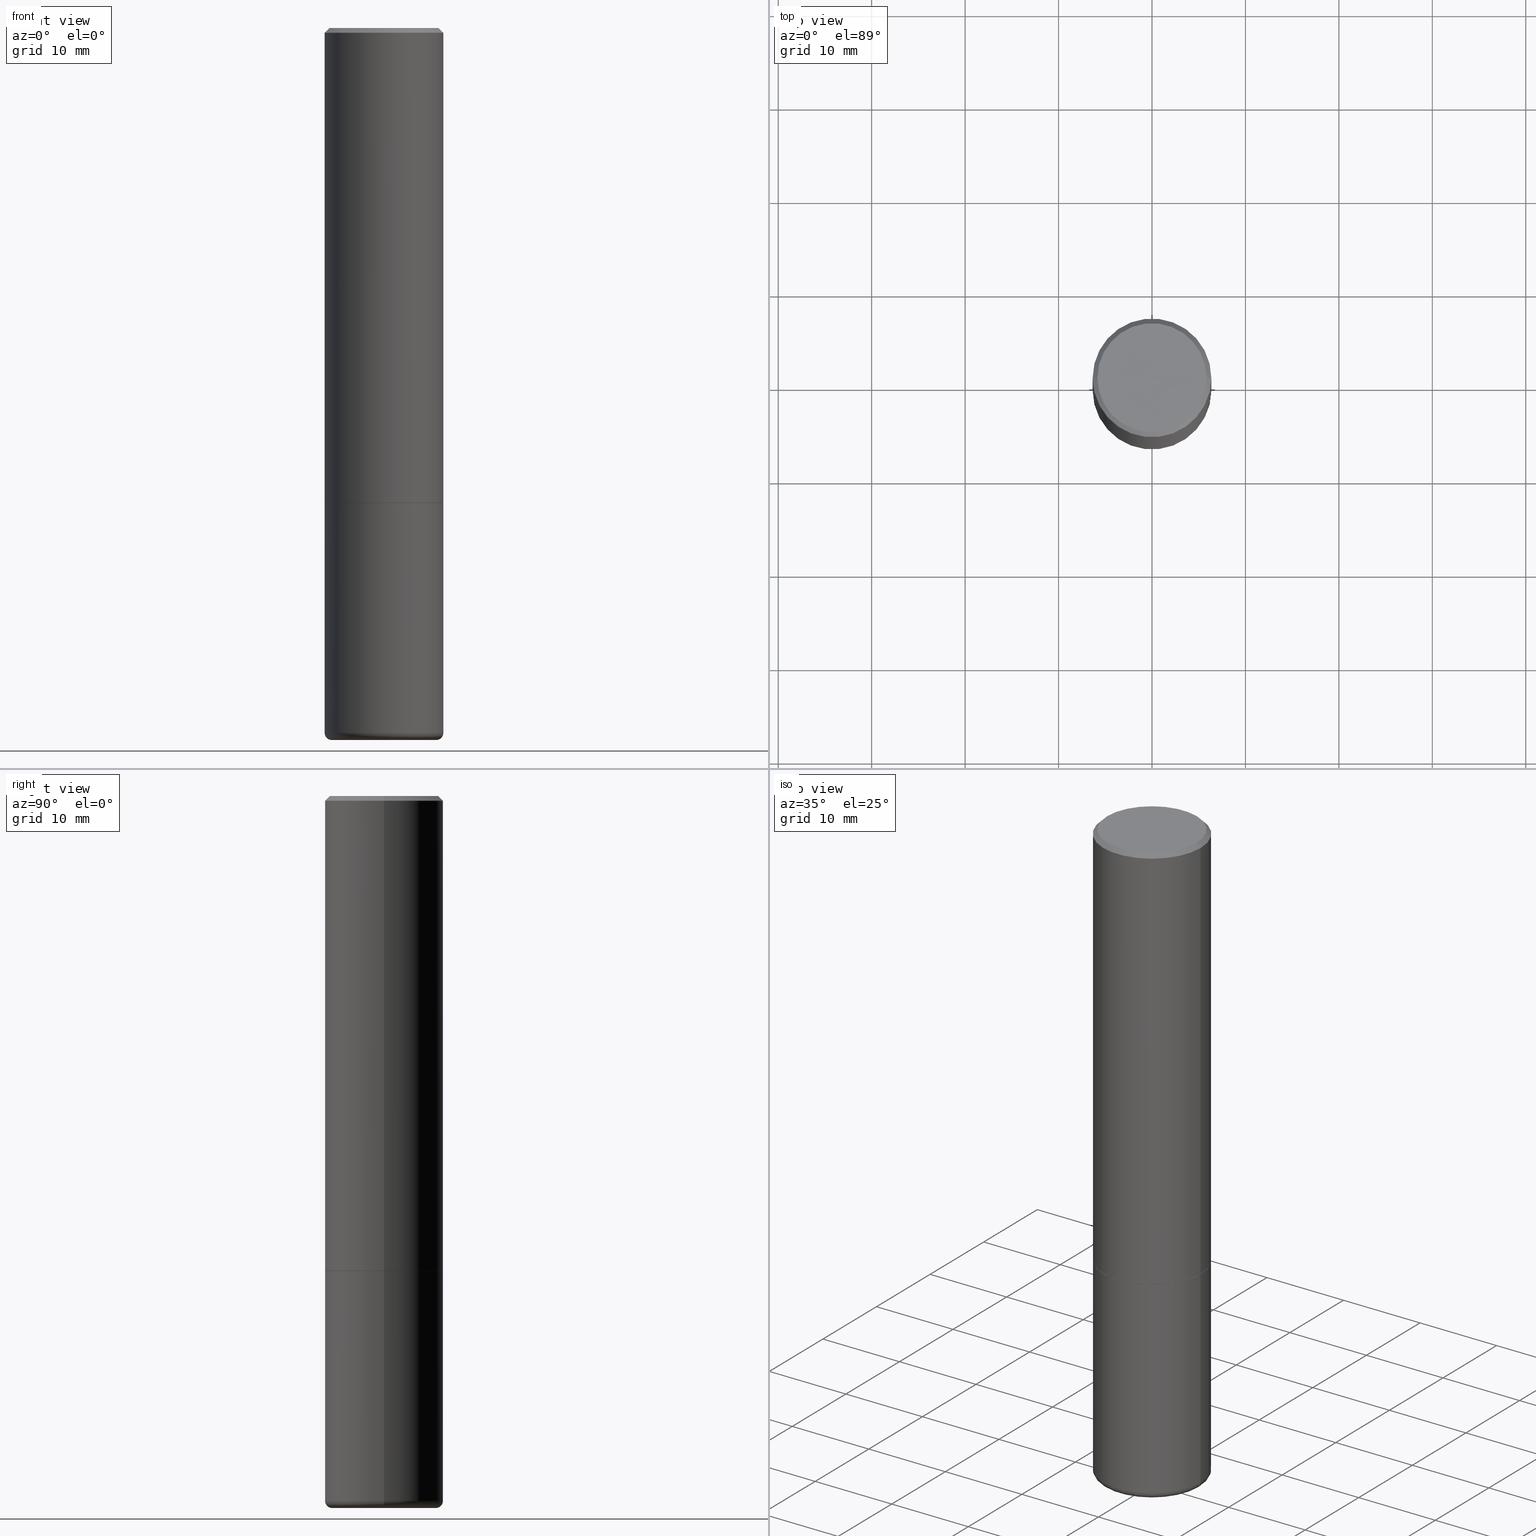
[diagram: canonical four-view strip — front | top / right | iso, engineering-drawing reading convention]
A machine part, canonical four-view strip (front | top / right | iso — engineering-drawing reading convention). The complete STEP part file that produces these views, byte-faithful:
ISO-10303-21;
HEADER;
FILE_DESCRIPTION (( 'STEP AP203' ),
    '1' );
FILE_NAME ('37343.STEP',
    '2024-03-02T00:01:26',
    ( '' ),
    ( '' ),
    'SwSTEP 2.0',
    'SolidWorks 2023',
    '' );
FILE_SCHEMA (( 'CONFIG_CONTROL_DESIGN' ));
ENDSEC;

DATA;
#1 = ORIENTED_EDGE ( 'NONE', *, *, #10, .T. ) ;
#2 = APPROVAL ( #135, 'UNSPECIFIED' ) ;
#3 = VERTEX_POINT ( 'NONE', #41 ) ;
#4 = ORIENTED_EDGE ( 'NONE', *, *, #157, .F. ) ;
#5 = EDGE_CURVE ( 'NONE', #39, #134, #55, .T. ) ;
#6 = AXIS2_PLACEMENT_3D ( 'NONE', #415, #68, #102 ) ;
#7 = CARTESIAN_POINT ( 'NONE',  ( 4.890937612370273754E-29, -6.982962677686291954E-15, -2.000000000000000444 ) ) ;
#8 = LINE ( 'NONE', #270, #181 ) ;
#9 = ADVANCED_FACE ( 'NONE', ( #339 ), #49, .F. ) ;
#10 = EDGE_CURVE ( 'NONE', #330, #260, #148, .T. ) ;
#11 = DIRECTION ( 'NONE',  ( -2.445468806185136597E-29, 3.491481338843145583E-15, 1.000000000000000000 ) ) ;
#12 = CC_DESIGN_DATE_AND_TIME_ASSIGNMENT ( #252, #79, ( #76 ) ) ;
#13 = PLANE ( 'NONE',  #26 ) ;
#14 = AXIS2_PLACEMENT_3D ( 'NONE', #366, #11, #243 ) ;
#15 = DIRECTION ( 'NONE',  ( -2.445468806185136597E-29, 3.491481338843145583E-15, 1.000000000000000000 ) ) ;
#16 = DIRECTION ( 'NONE',  ( 1.000000000000000000, -6.982962677686268288E-15, 0.000000000000000000 ) ) ;
#17 = DIRECTION ( 'NONE',  ( 1.000000000000000000, -6.982962677686270655E-15, 0.000000000000000000 ) ) ;
#18 = CARTESIAN_POINT ( 'NONE',  ( -0.2299999999999995381, 1.640996229256271139E-15, 4.268512490100296524E-16 ) ) ;
#19 = DIRECTION ( 'NONE',  ( -2.445468806185136877E-29, 3.491481338843145188E-15, 1.000000000000000000 ) ) ;
#20 = AXIS2_PLACEMENT_3D ( 'NONE', #305, #15, #121 ) ;
#21 = LINE ( 'NONE', #407, #87 ) ;
#22 = FACE_OUTER_BOUND ( 'NONE', #167, .T. ) ;
#23 = EDGE_LOOP ( 'NONE', ( #417, #28 ) ) ;
#24 = EDGE_CURVE ( 'NONE', #300, #229, #238, .T. ) ;
#25 = EDGE_CURVE ( 'NONE', #39, #113, #370, .T. ) ;
#26 = AXIS2_PLACEMENT_3D ( 'NONE', #335, #133, #264 ) ;
#27 = APPROVAL_STATUS ( 'not_yet_approved' ) ;
#28 = ORIENTED_EDGE ( 'NONE', *, *, #205, .F. ) ;
#29 = CALENDAR_DATE ( 2024, 1, 3 ) ;
#30 = EDGE_CURVE ( 'NONE', #165, #3, #178, .T. ) ;
#31 = ORIENTED_EDGE ( 'NONE', *, *, #5, .F. ) ;
#32 = APPROVAL_ROLE ( '' ) ;
#33 = CIRCLE ( 'NONE', #168, 0.2200000000000000011 ) ;
#34 = AXIS2_PLACEMENT_3D ( 'NONE', #151, #279, #247 ) ;
#35 = ORIENTED_EDGE ( 'NONE', *, *, #91, .F. ) ;
#36 = ORIENTED_EDGE ( 'NONE', *, *, #144, .T. ) ;
#37 = DIRECTION ( 'NONE',  ( -2.445468806185136597E-29, 3.491481338843145583E-15, 1.000000000000000000 ) ) ;
#38 = CYLINDRICAL_SURFACE ( 'NONE', #6, 0.2500000000000000000 ) ;
#39 = VERTEX_POINT ( 'NONE', #146 ) ;
#40 = EDGE_CURVE ( 'NONE', #359, #390, #267, .T. ) ;
#41 = CARTESIAN_POINT ( 'NONE',  ( 0.2499999999999998612, -1.211544024578571124E-14, -2.970000000000000195 ) ) ;
#42 = CALENDAR_DATE ( 2024, 1, 3 ) ;
#43 = DIRECTION ( 'NONE',  ( 2.438088387897960049E-29, -3.491481338843145188E-15, -1.000000000000000000 ) ) ;
#44 = EDGE_CURVE ( 'NONE', #390, #359, #142, .T. ) ;
#45 = DIRECTION ( 'NONE',  ( -2.445468806185136597E-29, 3.491481338843145583E-15, 1.000000000000000000 ) ) ;
#46 = CARTESIAN_POINT ( 'NONE',  ( 4.890937612370273754E-29, -6.982962677686291954E-15, -2.000000000000000444 ) ) ;
#47 = ADVANCED_FACE ( 'NONE', ( #149 ), #334, .T. ) ;
#48 = AXIS2_PLACEMENT_3D ( 'NONE', #404, #176, #313 ) ;
#49 = PLANE ( 'NONE',  #163 ) ;
#50 = CARTESIAN_POINT ( 'NONE',  ( 0.2489999999999999991, -8.721720384430172617E-15, -2.000000000000000444 ) ) ;
#51 =( CONVERSION_BASED_UNIT ( 'INCH', #409 ) LENGTH_UNIT ( ) NAMED_UNIT ( #103 ) );
#52 = DIRECTION ( 'NONE',  ( -0.7071067811866078578, 7.493145998870571886E-15, 0.7071067811864871766 ) ) ;
#53 = PRODUCT ( '37343', '37343', '', ( #127 ) ) ;
#54 = DIRECTION ( 'NONE',  ( 1.000000000000000000, -6.982962677686262766E-15, 4.883557194083111780E-29 ) ) ;
#55 = CIRCLE ( 'NONE', #213, 0.2500000000000002220 ) ;
#56 = CIRCLE ( 'NONE', #131, 0.2499999999999999722 ) ;
#57 = AXIS2_PLACEMENT_3D ( 'NONE', #89, #179, #217 ) ;
#58 = DIRECTION ( 'NONE',  ( -2.445468806185136597E-29, 3.491481338843145583E-15, 1.000000000000000000 ) ) ;
#59 = DIRECTION ( 'NONE',  ( -1.000000000000000000, 6.982962677686266711E-15, 0.000000000000000000 ) ) ;
#60 = ORIENTED_EDGE ( 'NONE', *, *, #91, .T. ) ;
#61 = ADVANCED_FACE ( 'NONE', ( #400 ), #369, .T. ) ;
#62 = PRODUCT_DEFINITION_SHAPE ( 'NONE', 'NONE',  #76 ) ;
#63 = AXIS2_PLACEMENT_3D ( 'NONE', #132, #405, #54 ) ;
#64 = PERSON_AND_ORGANIZATION ( #145, #325 ) ;
#65 = ADVANCED_FACE ( 'NONE', ( #22 ), #308, .T. ) ;
#66 = ORIENTED_EDGE ( 'NONE', *, *, #40, .T. ) ;
#67 = APPROVAL_DATE_TIME ( #379, #412 ) ;
#68 = DIRECTION ( 'NONE',  ( -2.445468806185136597E-29, 3.491481338843145583E-15, 1.000000000000000000 ) ) ;
#69 = ORIENTED_EDGE ( 'NONE', *, *, #235, .T. ) ;
#70 = EDGE_LOOP ( 'NONE', ( #129, #60, #288, #363 ) ) ;
#71 = MANIFOLD_SOLID_BREP ( 'Body-Move/Copy2[2]', #211 ) ;
#72 = EDGE_CURVE ( 'NONE', #260, #134, #342, .T. ) ;
#73 = AXIS2_PLACEMENT_3D ( 'NONE', #120, #84, #338 ) ;
#74 = ORIENTED_EDGE ( 'NONE', *, *, #30, .F. ) ;
#75 = DIRECTION ( 'NONE',  ( 1.000000000000000000, -6.982962677686266711E-15, 0.000000000000000000 ) ) ;
#76 = PRODUCT_DEFINITION ( 'UNKNOWN', '', #261, #233 ) ;
#77 = ORIENTED_EDGE ( 'NONE', *, *, #396, .T. ) ;
#78 = CARTESIAN_POINT ( 'NONE',  ( 7.263042354369856275E-29, -1.036969957636414298E-14, -2.970000000000000195 ) ) ;
#79 = DATE_TIME_ROLE ( 'creation_date' ) ;
#80 = CARTESIAN_POINT ( 'NONE',  ( 0.2500000000000000000, -8.728703347107858632E-15, -2.000000000000000444 ) ) ;
#81 = AXIS2_PLACEMENT_3D ( 'NONE', #7, #269, #206 ) ;
#82 = CIRCLE ( 'NONE', #101, 0.2500000000000000555 ) ;
#83 = CARTESIAN_POINT ( 'NONE',  ( 7.263042354369856275E-29, -1.036969957636414298E-14, -2.970000000000000195 ) ) ;
#84 = DIRECTION ( 'NONE',  ( -2.445468806185136597E-29, 3.491481338843145583E-15, 1.000000000000000000 ) ) ;
#85 = CARTESIAN_POINT ( 'NONE',  ( 4.888492143564088712E-29, -6.979471196347448158E-15, -1.999000000000000110 ) ) ;
#86 = CC_DESIGN_PERSON_AND_ORGANIZATION_ASSIGNMENT ( #99, #323, ( #322 ) ) ;
#87 = VECTOR ( 'NONE', #150, 39.37007874015748143 ) ;
#88 = DIRECTION ( 'NONE',  ( 1.000000000000000000, -6.982962677686269077E-15, 0.000000000000000000 ) ) ;
#89 = CARTESIAN_POINT ( 'NONE',  ( 0.000000000000000000, 0.000000000000000000, 0.000000000000000000 ) ) ;
#90 = FACE_OUTER_BOUND ( 'NONE', #70, .T. ) ;
#91 = EDGE_CURVE ( 'NONE', #300, #113, #94, .T. ) ;
#92 = DIRECTION ( 'NONE',  ( 2.445468806185136597E-29, -3.491481338843145583E-15, -1.000000000000000000 ) ) ;
#93 =( LENGTH_UNIT ( ) NAMED_UNIT ( * ) SI_UNIT ( $, .METRE. ) );
#94 = LINE ( 'NONE', #219, #225 ) ;
#95 = AXIS2_PLACEMENT_3D ( 'NONE', #46, #216, #212 ) ;
#96 = APPROVAL_PERSON_ORGANIZATION ( #64, #275, #188 ) ;
#97 = DIRECTION ( 'NONE',  ( -2.445468806185136597E-29, 3.491481338843145583E-15, 1.000000000000000000 ) ) ;
#98 = DIRECTION ( 'NONE',  ( -2.445468806185136597E-29, 3.491481338843145583E-15, 1.000000000000000000 ) ) ;
#99 = PERSON_AND_ORGANIZATION ( #145, #325 ) ;
#100 = ADVANCED_FACE ( 'NONE', ( #90 ), #373, .T. ) ;
#101 = AXIS2_PLACEMENT_3D ( 'NONE', #78, #303, #209 ) ;
#102 = DIRECTION ( 'NONE',  ( 1.000000000000000000, -6.982962677686266711E-15, 4.876176775795935793E-29 ) ) ;
#103 = DIMENSIONAL_EXPONENTS ( 1.000000000000000000, 0.000000000000000000, 0.000000000000000000, 0.000000000000000000, 0.000000000000000000, 0.000000000000000000, 0.000000000000000000 ) ;
#104 = ORIENTED_EDGE ( 'NONE', *, *, #245, .F. ) ;
#105 = CALENDAR_DATE ( 2024, 1, 3 ) ;
#106 = ORIENTED_EDGE ( 'NONE', *, *, #241, .F. ) ;
#107 = PERSON_AND_ORGANIZATION ( #145, #325 ) ;
#108 = COORDINATED_UNIVERSAL_TIME_OFFSET ( 5, 0, .BEHIND. ) ;
#109 = ORIENTED_EDGE ( 'NONE', *, *, #185, .F. ) ;
#110 = ADVANCED_FACE ( 'NONE', ( #319 ), #331, .T. ) ;
#111 = AXIS2_PLACEMENT_3D ( 'NONE', #128, #98, #250 ) ;
#112 = SHAPE_DEFINITION_REPRESENTATION ( #62, #368 ) ;
#113 = VERTEX_POINT ( 'NONE', #180 ) ;
#114 = DIRECTION ( 'NONE',  ( -2.445468806185136597E-29, 3.491481338843145583E-15, 1.000000000000000000 ) ) ;
#115 = DIRECTION ( 'NONE',  ( -2.445468806185136877E-29, 3.491481338843145188E-15, 1.000000000000000000 ) ) ;
#116 = ADVANCED_FACE ( 'NONE', ( #316 ), #376, .F. ) ;
#117 = AXIS2_PLACEMENT_3D ( 'NONE', #177, #58, #184 ) ;
#118 = APPROVAL_PERSON_ORGANIZATION ( #284, #2, #32 ) ;
#119 = CARTESIAN_POINT ( 'NONE',  ( 0.000000000000000000, 0.000000000000000000, 0.000000000000000000 ) ) ;
#120 = CARTESIAN_POINT ( 'NONE',  ( 0.000000000000000000, 0.000000000000000000, 0.000000000000000000 ) ) ;
#121 = DIRECTION ( 'NONE',  ( 1.000000000000000000, -6.982962677686266711E-15, 0.000000000000000000 ) ) ;
#122 = DIRECTION ( 'NONE',  ( 1.000000000000000000, -6.982962677686266711E-15, 4.876176775795935793E-29 ) ) ;
#123 = CARTESIAN_POINT ( 'NONE',  ( 7.336406418555408669E-29, -1.047444401652943478E-14, -2.999999999999999556 ) ) ;
#124 =( NAMED_UNIT ( * ) SI_UNIT ( $, .STERADIAN. ) SOLID_ANGLE_UNIT ( ) );
#125 = CARTESIAN_POINT ( 'NONE',  ( 1.606081415867837912E-15, 0.2299999999999995381, -5.896150834289013687E-16 ) ) ;
#126 = CARTESIAN_POINT ( 'NONE',  ( -0.2200000000000000011, -8.806505557691921187E-15, -2.970000000000000195 ) ) ;
#127 = MECHANICAL_CONTEXT ( 'NONE', #169, 'mechanical' ) ;
#128 = CARTESIAN_POINT ( 'NONE',  ( -1.043851414335219407E-44, 1.490343170380446839E-30, 4.268512490100409923E-16 ) ) ;
#129 = ORIENTED_EDGE ( 'NONE', *, *, #24, .F. ) ;
#130 = CARTESIAN_POINT ( 'NONE',  ( 4.890937612370296805E-31, -6.982962677686323656E-17, -0.02000000000000009409 ) ) ;
#131 = AXIS2_PLACEMENT_3D ( 'NONE', #156, #380, #281 ) ;
#132 = CARTESIAN_POINT ( 'NONE',  ( 7.263042354369856275E-29, -1.036969957636414298E-14, -2.970000000000000195 ) ) ;
#133 = DIRECTION ( 'NONE',  ( 2.438088387897960049E-29, -3.491481338843145188E-15, -1.000000000000000000 ) ) ;
#134 = VERTEX_POINT ( 'NONE', #410 ) ;
#135 = APPROVAL_STATUS ( 'not_yet_approved' ) ;
#136 = VECTOR ( 'NONE', #234, 39.37007874015748143 ) ;
#137 = LOCAL_TIME ( 19, 1, 26.00000000000000000, #327 ) ;
#138 = DATE_AND_TIME ( #105, #137 ) ;
#139 = ORIENTED_EDGE ( 'NONE', *, *, #255, .F. ) ;
#140 = FACE_OUTER_BOUND ( 'NONE', #326, .T. ) ;
#141 = ORIENTED_EDGE ( 'NONE', *, *, #144, .F. ) ;
#142 = CIRCLE ( 'NONE', #81, 0.2500000000000000000 ) ;
#143 = CC_DESIGN_SECURITY_CLASSIFICATION ( #322, ( #261 ) ) ;
#144 = EDGE_CURVE ( 'NONE', #318, #283, #244, .T. ) ;
#145 = PERSON ( 'UNSPECIFIED', 'UNSPECIFIED', 'UNSPECIFIED', ('UNSPECIFIED'), ('UNSPECIFIED'), ('UNSPECIFIED') ) ;
#146 = CARTESIAN_POINT ( 'NONE',  ( 0.2500000000000002220, -8.725211865769017202E-15, -1.999000000000000110 ) ) ;
#147 = CARTESIAN_POINT ( 'NONE',  ( 0.2200000000000000011, -1.201069580562041471E-14, -2.999999999999999556 ) ) ;
#148 = CIRCLE ( 'NONE', #20, 0.2489999999999999991 ) ;
#149 = FACE_OUTER_BOUND ( 'NONE', #328, .T. ) ;
#150 = DIRECTION ( 'NONE',  ( -0.7071067811865460184, 2.468850131082241283E-15, -0.7071067811865490160 ) ) ;
#151 = CARTESIAN_POINT ( 'NONE',  ( 0.2200000000000000011, -1.190595136545512292E-14, -2.970000000000000195 ) ) ;
#152 = AXIS2_PLACEMENT_3D ( 'NONE', #83, #372, #88 ) ;
#153 = DIRECTION ( 'NONE',  ( 1.000000000000000000, -6.982962677686266711E-15, 0.000000000000000000 ) ) ;
#154 = ORIENTED_EDGE ( 'NONE', *, *, #40, .F. ) ;
#155 = PERSON_AND_ORGANIZATION ( #145, #325 ) ;
#156 = CARTESIAN_POINT ( 'NONE',  ( 4.890937612370296805E-31, -6.982962677686323656E-17, -0.02000000000000009409 ) ) ;
#157 = EDGE_CURVE ( 'NONE', #324, #113, #56, .T. ) ;
#158 = DIRECTION ( 'NONE',  ( 0.7071067811865460184, -7.319954787623251312E-15, -0.7071067811865490160 ) ) ;
#159 = AXIS2_PLACEMENT_3D ( 'NONE', #221, #411, #256 ) ;
#160 = EDGE_LOOP ( 'NONE', ( #1, #294, #31, #194 ) ) ;
#161 = ORIENTED_EDGE ( 'NONE', *, *, #25, .T. ) ;
#162 = ORIENTED_EDGE ( 'NONE', *, *, #341, .F. ) ;
#163 = AXIS2_PLACEMENT_3D ( 'NONE', #307, #43, #403 ) ;
#164 = PERSON_AND_ORGANIZATION_ROLE ( 'creator' ) ;
#165 = VERTEX_POINT ( 'NONE', #287 ) ;
#166 = CYLINDRICAL_SURFACE ( 'NONE', #271, 0.2500000000000000000 ) ;
#167 = EDGE_LOOP ( 'NONE', ( #139, #249, #388, #74 ) ) ;
#168 = AXIS2_PLACEMENT_3D ( 'NONE', #123, #97, #17 ) ;
#169 = APPLICATION_CONTEXT ( 'configuration controlled 3d designs of mechanical parts and assemblies' ) ;
#170 = CARTESIAN_POINT ( 'NONE',  ( 0.2299999999999995381, -1.681434332853596842E-15, 4.268512490100525294E-16 ) ) ;
#171 = AXIS2_PLACEMENT_3D ( 'NONE', #387, #37, #75 ) ;
#172 = CC_DESIGN_APPROVAL ( #275, ( #322 ) ) ;
#173 = COORDINATED_UNIVERSAL_TIME_OFFSET ( 5, 0, .BEHIND. ) ;
#174 = DIRECTION ( 'NONE',  ( 2.445468806185136597E-29, -3.491481338843145583E-15, -1.000000000000000000 ) ) ;
#175 = DIRECTION ( 'NONE',  ( 0.7071067811866078578, -2.468850131082888544E-15, 0.7071067811864871766 ) ) ;
#176 = DIRECTION ( 'NONE',  ( -2.445468806185136597E-29, 3.491481338843145583E-15, 1.000000000000000000 ) ) ;
#177 = CARTESIAN_POINT ( 'NONE',  ( 4.890937612370273754E-29, -6.982962677686291954E-15, -2.000000000000000444 ) ) ;
#178 = CIRCLE ( 'NONE', #152, 0.2500000000000000555 ) ;
#179 = DIRECTION ( 'NONE',  ( 0.000000000000000000, 0.000000000000000000, 1.000000000000000000 ) ) ;
#180 = CARTESIAN_POINT ( 'NONE',  ( 0.2499999999999999722, -1.784954126219746189E-15, -0.02000000000000009409 ) ) ;
#181 = VECTOR ( 'NONE', #392, 39.37007874015748143 ) ;
#182 = APPLICATION_PROTOCOL_DEFINITION ( 'international standard', 'config_control_design', 1994, #169 ) ;
#183 = PERSON_AND_ORGANIZATION_ROLE ( 'creator' ) ;
#184 = DIRECTION ( 'NONE',  ( 1.000000000000000000, -6.982962677686266711E-15, 0.000000000000000000 ) ) ;
#185 = EDGE_CURVE ( 'NONE', #229, #300, #202, .T. ) ;
#186 = ORIENTED_EDGE ( 'NONE', *, *, #72, .F. ) ;
#187 = DIRECTION ( 'NONE',  ( 7.105427357601001859E-15, 1.000000000000000000, -3.491481338843145583E-15 ) ) ;
#188 = APPROVAL_ROLE ( '' ) ;
#189 = AXIS2_PLACEMENT_3D ( 'NONE', #347, #174, #312 ) ;
#190 = ADVANCED_FACE ( 'NONE', ( #378 ), #321, .T. ) ;
#191 = APPROVAL_ROLE ( '' ) ;
#192 = ORIENTED_EDGE ( 'NONE', *, *, #24, .T. ) ;
#193 = PERSON_AND_ORGANIZATION ( #145, #325 ) ;
#194 = ORIENTED_EDGE ( 'NONE', *, *, #396, .F. ) ;
#195 = DATE_AND_TIME ( #320, #291 ) ;
#196 = EDGE_LOOP ( 'NONE', ( #186, #223, #77, #210 ) ) ;
#197 = ORIENTED_EDGE ( 'NONE', *, *, #185, .T. ) ;
#198 = PRODUCT_RELATED_PRODUCT_CATEGORY ( 'detail', '', ( #53 ) ) ;
#199 = ORIENTED_EDGE ( 'NONE', *, *, #30, .T. ) ;
#200 = FACE_OUTER_BOUND ( 'NONE', #196, .T. ) ;
#201 = FACE_OUTER_BOUND ( 'NONE', #266, .T. ) ;
#202 = CIRCLE ( 'NONE', #111, 0.2299999999999995381 ) ;
#203 = APPROVAL_PERSON_ORGANIZATION ( #352, #412, #191 ) ;
#204 = CARTESIAN_POINT ( 'NONE',  ( -0.2500000000000000000, -6.899974287624967004E-15, -2.000000000000000444 ) ) ;
#205 = EDGE_CURVE ( 'NONE', #260, #330, #406, .T. ) ;
#206 = DIRECTION ( 'NONE',  ( 1.000000000000000000, -6.982962677686266711E-15, 0.000000000000000000 ) ) ;
#207 = CARTESIAN_POINT ( 'NONE',  ( 4.888492143564088712E-29, -6.979471196347448158E-15, -1.999000000000000110 ) ) ;
#208 = DIRECTION ( 'NONE',  ( -2.445468806185136597E-29, 3.491481338843145583E-15, 1.000000000000000000 ) ) ;
#209 = DIRECTION ( 'NONE',  ( 1.000000000000000000, -6.982962677686269077E-15, 0.000000000000000000 ) ) ;
#210 = ORIENTED_EDGE ( 'NONE', *, *, #346, .F. ) ;
#211 = CLOSED_SHELL ( 'NONE', ( #304, #61, #100, #190, #47, #268, #285, #116 ) ) ;
#212 = DIRECTION ( 'NONE',  ( 1.000000000000000000, -6.982962677686265922E-15, 4.876176775795935793E-29 ) ) ;
#213 = AXIS2_PLACEMENT_3D ( 'NONE', #85, #276, #16 ) ;
#214 = VECTOR ( 'NONE', #175, 39.37007874015748143 ) ;
#215 = DIRECTION ( 'NONE',  ( 1.000000000000000000, -6.982962677686266711E-15, 0.000000000000000000 ) ) ;
#216 = DIRECTION ( 'NONE',  ( -2.438088387897960049E-29, 3.491481338843145188E-15, 1.000000000000000000 ) ) ;
#217 = DIRECTION ( 'NONE',  ( 1.000000000000000000, 0.000000000000000000, 0.000000000000000000 ) ) ;
#218 = CARTESIAN_POINT ( 'NONE',  ( -0.2500000000000000000, 1.776356839400250465E-15, -1.229733772563726445E-29 ) ) ;
#219 = CARTESIAN_POINT ( 'NONE',  ( 0.2499999999999999722, -1.784954126219746189E-15, -0.02000000000000009409 ) ) ;
#220 = VECTOR ( 'NONE', #19, 39.37007874015748143 ) ;
#221 = CARTESIAN_POINT ( 'NONE',  ( 7.336406418555408669E-29, -1.047444401652943478E-14, -2.999999999999999556 ) ) ;
#222 = CIRCLE ( 'NONE', #332, 0.2500000000000002220 ) ;
#223 = ORIENTED_EDGE ( 'NONE', *, *, #205, .T. ) ;
#224 = DIRECTION ( 'NONE',  ( -1.000000000000000000, 6.982962677686265922E-15, -4.876176775795935793E-29 ) ) ;
#225 = VECTOR ( 'NONE', #158, 39.37007874015748143 ) ;
#226 = ORIENTED_EDGE ( 'NONE', *, *, #157, .T. ) ;
#227 = EDGE_LOOP ( 'NONE', ( #232, #262, #106, #394 ) ) ;
#228 = SECURITY_CLASSIFICATION_LEVEL ( 'unclassified' ) ;
#229 = VERTEX_POINT ( 'NONE', #18 ) ;
#230 = CIRCLE ( 'NONE', #34, 0.02999999999999971440 ) ;
#231 = DATE_AND_TIME ( #29, #315 ) ;
#232 = ORIENTED_EDGE ( 'NONE', *, *, #5, .T. ) ;
#233 = DESIGN_CONTEXT ( 'detailed design', #402, 'design' ) ;
#234 = DIRECTION ( 'NONE',  ( -2.445468806185136877E-29, 3.491481338843145188E-15, 1.000000000000000000 ) ) ;
#235 = EDGE_CURVE ( 'NONE', #229, #324, #21, .T. ) ;
#236 = ORIENTED_EDGE ( 'NONE', *, *, #358, .F. ) ;
#237 = CLOSED_SHELL ( 'NONE', ( #282, #110, #9, #263, #65, #401 ) ) ;
#238 = CIRCLE ( 'NONE', #14, 0.2299999999999995381 ) ;
#239 =( GEOMETRIC_REPRESENTATION_CONTEXT ( 3 ) GLOBAL_UNCERTAINTY_ASSIGNED_CONTEXT ( ( #371 ) ) GLOBAL_UNIT_ASSIGNED_CONTEXT ( ( #51, #350, #124 ) ) REPRESENTATION_CONTEXT ( 'NONE', 'WORKASPACE' ) );
#240 = CARTESIAN_POINT ( 'NONE',  ( -0.2200000000000000011, -8.752296367410555115E-15, -2.999999999999999556 ) ) ;
#241 = EDGE_CURVE ( 'NONE', #113, #324, #418, .T. ) ;
#242 = DIRECTION ( 'NONE',  ( 1.000000000000000000, -6.982962677686266711E-15, 4.876176775795935793E-29 ) ) ;
#243 = DIRECTION ( 'NONE',  ( 1.000000000000000000, -6.982962677686266711E-15, 4.879110437680785527E-29 ) ) ;
#244 = CIRCLE ( 'NONE', #159, 0.2200000000000000011 ) ;
#245 = EDGE_CURVE ( 'NONE', #165, #390, #246, .T. ) ;
#246 = LINE ( 'NONE', #218, #220 ) ;
#247 = DIRECTION ( 'NONE',  ( 1.000000000000000000, -6.982962677686269866E-15, 0.000000000000000000 ) ) ;
#248 = CARTESIAN_POINT ( 'NONE',  ( -0.2489999999999999991, -5.213711265643642498E-15, -2.000000000000000444 ) ) ;
#249 = ORIENTED_EDGE ( 'NONE', *, *, #257, .T. ) ;
#250 = DIRECTION ( 'NONE',  ( 1.000000000000000000, -6.982962677686266711E-15, 4.879110437680785527E-29 ) ) ;
#251 = EDGE_LOOP ( 'NONE', ( #36, #384, #293, #162 ) ) ;
#252 = DATE_AND_TIME ( #42, #272 ) ;
#253 = AXIS2_PLACEMENT_3D ( 'NONE', #119, #208, #242 ) ;
#254 = ORIENTED_EDGE ( 'NONE', *, *, #44, .F. ) ;
#255 = EDGE_CURVE ( 'NONE', #283, #165, #302, .T. ) ;
#256 = DIRECTION ( 'NONE',  ( 1.000000000000000000, -6.982962677686270655E-15, 0.000000000000000000 ) ) ;
#257 = EDGE_CURVE ( 'NONE', #283, #318, #33, .T. ) ;
#258 = COORDINATED_UNIVERSAL_TIME_OFFSET ( 5, 0, .BEHIND. ) ;
#259 = ORIENTED_EDGE ( 'NONE', *, *, #346, .T. ) ;
#260 = VERTEX_POINT ( 'NONE', #385 ) ;
#261 = PRODUCT_DEFINITION_FORMATION_WITH_SPECIFIED_SOURCE ( 'ANY', '', #53, .NOT_KNOWN. ) ;
#262 = ORIENTED_EDGE ( 'NONE', *, *, #358, .T. ) ;
#263 = ADVANCED_FACE ( 'NONE', ( #329 ), #38, .T. ) ;
#264 = DIRECTION ( 'NONE',  ( -1.000000000000000000, 6.982962677686265922E-15, -4.876176775795935793E-29 ) ) ;
#265 = APPROVAL_DATE_TIME ( #195, #2 ) ;
#266 = EDGE_LOOP ( 'NONE', ( #141, #377 ) ) ;
#267 = CIRCLE ( 'NONE', #340, 0.2500000000000000000 ) ;
#268 = ADVANCED_FACE ( 'NONE', ( #200 ), #367, .T. ) ;
#269 = DIRECTION ( 'NONE',  ( -2.445468806185136597E-29, 3.491481338843145583E-15, 1.000000000000000000 ) ) ;
#270 = CARTESIAN_POINT ( 'NONE',  ( -0.2500000000000001110, 1.776356839400251254E-15, -1.229733772563727006E-29 ) ) ;
#271 = AXIS2_PLACEMENT_3D ( 'NONE', #277, #374, #122 ) ;
#272 = LOCAL_TIME ( 19, 1, 26.00000000000000000, #173 ) ;
#273 = CARTESIAN_POINT ( 'NONE',  ( 0.2489999999999999991, -8.721720384430172617E-15, -2.000000000000000444 ) ) ;
#274 = CC_DESIGN_PERSON_AND_ORGANIZATION_ASSIGNMENT ( #193, #414, ( #261 ) ) ;
#275 = APPROVAL ( #27, 'UNSPECIFIED' ) ;
#276 = DIRECTION ( 'NONE',  ( -2.445468806185136597E-29, 3.491481338843145583E-15, 1.000000000000000000 ) ) ;
#277 = CARTESIAN_POINT ( 'NONE',  ( 0.000000000000000000, 0.000000000000000000, 0.000000000000000000 ) ) ;
#278 = DIRECTION ( 'NONE',  ( -2.445468806185136597E-29, 3.491481338843145583E-15, 1.000000000000000000 ) ) ;
#279 = DIRECTION ( 'NONE',  ( -6.982962677686266711E-15, -1.000000000000000000, 3.491481338843145583E-15 ) ) ;
#280 = VECTOR ( 'NONE', #115, 39.37007874015748143 ) ;
#281 = DIRECTION ( 'NONE',  ( 1.000000000000000000, -6.982962677686266711E-15, 0.000000000000000000 ) ) ;
#282 = ADVANCED_FACE ( 'NONE', ( #140 ), #166, .T. ) ;
#283 = VERTEX_POINT ( 'NONE', #240 ) ;
#284 = PERSON_AND_ORGANIZATION ( #145, #325 ) ;
#285 = ADVANCED_FACE ( 'NONE', ( #399 ), #336, .F. ) ;
#286 = PERSON_AND_ORGANIZATION_ROLE ( 'design_owner' ) ;
#287 = CARTESIAN_POINT ( 'NONE',  ( -0.2499999999999998612, -8.593342736963892519E-15, -2.970000000000000195 ) ) ;
#288 = ORIENTED_EDGE ( 'NONE', *, *, #241, .T. ) ;
#289 = CARTESIAN_POINT ( 'NONE',  ( 4.890937612370296805E-31, -6.982962677686323656E-17, -0.02000000000000009409 ) ) ;
#290 = AXIS2_PLACEMENT_3D ( 'NONE', #125, #375, #224 ) ;
#291 = LOCAL_TIME ( 19, 1, 26.00000000000000000, #382 ) ;
#292 = DIRECTION ( 'NONE',  ( -2.445468806185136597E-29, 3.491481338843145583E-15, 1.000000000000000000 ) ) ;
#293 = ORIENTED_EDGE ( 'NONE', *, *, #357, .F. ) ;
#294 = ORIENTED_EDGE ( 'NONE', *, *, #72, .T. ) ;
#295 = AXIS2_PLACEMENT_3D ( 'NONE', #130, #278, #153 ) ;
#296 = ORIENTED_EDGE ( 'NONE', *, *, #245, .T. ) ;
#297 = CC_DESIGN_APPROVAL ( #412, ( #76 ) ) ;
#298 = DATE_TIME_ROLE ( 'classification_date' ) ;
#299 = EDGE_LOOP ( 'NONE', ( #66, #317 ) ) ;
#300 = VERTEX_POINT ( 'NONE', #170 ) ;
#301 = CC_DESIGN_DATE_AND_TIME_ASSIGNMENT ( #231, #298, ( #322 ) ) ;
#302 = CIRCLE ( 'NONE', #355, 0.02999999999999971440 ) ;
#303 = DIRECTION ( 'NONE',  ( -2.445468806185136597E-29, 3.491481338843145583E-15, 1.000000000000000000 ) ) ;
#304 = ADVANCED_FACE ( 'NONE', ( #310 ), #383, .T. ) ;
#305 = CARTESIAN_POINT ( 'NONE',  ( 4.890937612370273754E-29, -6.982962677686291954E-15, -2.000000000000000444 ) ) ;
#306 = DIRECTION ( 'NONE',  ( 1.000000000000000000, -6.982962677686268288E-15, 0.000000000000000000 ) ) ;
#307 = CARTESIAN_POINT ( 'NONE',  ( 4.890937612370273754E-29, -6.982962677686291954E-15, -2.000000000000000444 ) ) ;
#308 = TOROIDAL_SURFACE ( 'NONE', #63, 0.2200000000000000011, 0.02999999999999971440 ) ;
#309 = LOCAL_TIME ( 19, 1, 26.00000000000000000, #108 ) ;
#310 = FACE_OUTER_BOUND ( 'NONE', #160, .T. ) ;
#311 = APPROVAL_STATUS ( 'not_yet_approved' ) ;
#312 = DIRECTION ( 'NONE',  ( -1.000000000000000000, 6.982962677686266711E-15, 0.000000000000000000 ) ) ;
#313 = DIRECTION ( 'NONE',  ( 1.000000000000000000, -6.982962677686266711E-15, 0.000000000000000000 ) ) ;
#314 = AXIS2_PLACEMENT_3D ( 'NONE', #344, #292, #353 ) ;
#315 = LOCAL_TIME ( 19, 1, 26.00000000000000000, #258 ) ;
#316 = FACE_OUTER_BOUND ( 'NONE', #356, .T. ) ;
#317 = ORIENTED_EDGE ( 'NONE', *, *, #44, .T. ) ;
#318 = VERTEX_POINT ( 'NONE', #147 ) ;
#319 = FACE_OUTER_BOUND ( 'NONE', #251, .T. ) ;
#320 = CALENDAR_DATE ( 2024, 1, 3 ) ;
#321 = CONICAL_SURFACE ( 'NONE', #189, 0.2499999999999999722, 0.7853981633974461696 ) ;
#322 = SECURITY_CLASSIFICATION ( '', '', #228 ) ;
#323 = PERSON_AND_ORGANIZATION_ROLE ( 'classification_officer' ) ;
#324 = VERTEX_POINT ( 'NONE', #393 ) ;
#325 = ORGANIZATION ( 'UNSPECIFIED', 'UNSPECIFIED', '' ) ;
#326 = EDGE_LOOP ( 'NONE', ( #351, #296, #154, #386 ) ) ;
#327 = COORDINATED_UNIVERSAL_TIME_OFFSET ( 5, 0, .BEHIND. ) ;
#328 = EDGE_LOOP ( 'NONE', ( #236, #259, #161, #4 ) ) ;
#329 = FACE_OUTER_BOUND ( 'NONE', #381, .T. ) ;
#330 = VERTEX_POINT ( 'NONE', #273 ) ;
#331 = TOROIDAL_SURFACE ( 'NONE', #314, 0.2200000000000000011, 0.02999999999999971440 ) ;
#332 = AXIS2_PLACEMENT_3D ( 'NONE', #207, #45, #306 ) ;
#333 = LINE ( 'NONE', #50, #214 ) ;
#334 = CYLINDRICAL_SURFACE ( 'NONE', #253, 0.2500000000000001110 ) ;
#335 = CARTESIAN_POINT ( 'NONE',  ( 1.253905894061076502E-28, -3.023949488354177656E-15, -2.999999999999999556 ) ) ;
#336 = PLANE ( 'NONE',  #95 ) ;
#337 = PERSON_AND_ORGANIZATION ( #145, #325 ) ;
#338 = DIRECTION ( 'NONE',  ( 1.000000000000000000, -6.982962677686266711E-15, 4.876176775795935793E-29 ) ) ;
#339 = FACE_OUTER_BOUND ( 'NONE', #299, .T. ) ;
#340 = AXIS2_PLACEMENT_3D ( 'NONE', #397, #114, #215 ) ;
#341 = EDGE_CURVE ( 'NONE', #318, #3, #230, .T. ) ;
#342 = LINE ( 'NONE', #248, #398 ) ;
#343 = EDGE_CURVE ( 'NONE', #3, #359, #391, .T. ) ;
#344 = CARTESIAN_POINT ( 'NONE',  ( 7.263042354369856275E-29, -1.036969957636414298E-14, -2.970000000000000195 ) ) ;
#345 = CC_DESIGN_APPROVAL ( #2, ( #261 ) ) ;
#346 = EDGE_CURVE ( 'NONE', #134, #39, #222, .T. ) ;
#347 = CARTESIAN_POINT ( 'NONE',  ( 4.890937612370296805E-31, -6.982962677686323656E-17, -0.02000000000000009409 ) ) ;
#348 = MANIFOLD_SOLID_BREP ( 'Body-Move/Copy2[1]', #237 ) ;
#349 = CC_DESIGN_PERSON_AND_ORGANIZATION_ASSIGNMENT ( #107, #164, ( #261 ) ) ;
#350 =( NAMED_UNIT ( * ) PLANE_ANGLE_UNIT ( ) SI_UNIT ( $, .RADIAN. ) );
#351 = ORIENTED_EDGE ( 'NONE', *, *, #357, .T. ) ;
#352 = PERSON_AND_ORGANIZATION ( #145, #325 ) ;
#353 = DIRECTION ( 'NONE',  ( 1.000000000000000000, -6.982962677686262766E-15, 4.883557194083111780E-29 ) ) ;
#354 = CALENDAR_DATE ( 2024, 1, 3 ) ;
#355 = AXIS2_PLACEMENT_3D ( 'NONE', #126, #187, #413 ) ;
#356 = EDGE_LOOP ( 'NONE', ( #197, #192 ) ) ;
#357 = EDGE_CURVE ( 'NONE', #3, #165, #82, .T. ) ;
#358 = EDGE_CURVE ( 'NONE', #134, #324, #8, .T. ) ;
#359 = VERTEX_POINT ( 'NONE', #80 ) ;
#360 = EDGE_LOOP ( 'NONE', ( #35, #109, #69, #226 ) ) ;
#361 = AXIS2_PLACEMENT_3D ( 'NONE', #289, #92, #59 ) ;
#362 = ORIENTED_EDGE ( 'NONE', *, *, #343, .T. ) ;
#363 = ORIENTED_EDGE ( 'NONE', *, *, #235, .F. ) ;
#364 = CARTESIAN_POINT ( 'NONE',  ( 0.2500000000000001110, -1.745740669421567467E-15, 1.219044193948984509E-29 ) ) ;
#365 = CC_DESIGN_PERSON_AND_ORGANIZATION_ASSIGNMENT ( #155, #286, ( #53 ) ) ;
#366 = CARTESIAN_POINT ( 'NONE',  ( -1.043851414335219407E-44, 1.490343170380446839E-30, 4.268512490100409923E-16 ) ) ;
#367 = CONICAL_SURFACE ( 'NONE', #171, 0.2489999999999999991, 0.7853981633975336552 ) ;
#368 = ADVANCED_BREP_SHAPE_REPRESENTATION ( '37343', ( #348, #71, #57 ), #239 ) ;
#369 = CYLINDRICAL_SURFACE ( 'NONE', #73, 0.2500000000000001110 ) ;
#370 = LINE ( 'NONE', #364, #136 ) ;
#371 = UNCERTAINTY_MEASURE_WITH_UNIT (LENGTH_MEASURE( 1.000000000000000082E-05 ), #51, 'distance_accuracy_value', 'NONE');
#372 = DIRECTION ( 'NONE',  ( -2.445468806185136597E-29, 3.491481338843145583E-15, 1.000000000000000000 ) ) ;
#373 = CONICAL_SURFACE ( 'NONE', #361, 0.2499999999999999722, 0.7853981633974461696 ) ;
#374 = DIRECTION ( 'NONE',  ( -2.445468806185136597E-29, 3.491481338843145583E-15, 1.000000000000000000 ) ) ;
#375 = DIRECTION ( 'NONE',  ( 2.438088387897960049E-29, -3.491481338843145188E-15, -1.000000000000000000 ) ) ;
#376 = PLANE ( 'NONE',  #290 ) ;
#377 = ORIENTED_EDGE ( 'NONE', *, *, #257, .F. ) ;
#378 = FACE_OUTER_BOUND ( 'NONE', #360, .T. ) ;
#379 = DATE_AND_TIME ( #354, #309 ) ;
#380 = DIRECTION ( 'NONE',  ( -2.445468806185136597E-29, 3.491481338843145583E-15, 1.000000000000000000 ) ) ;
#381 = EDGE_LOOP ( 'NONE', ( #104, #199, #362, #254 ) ) ;
#382 = COORDINATED_UNIVERSAL_TIME_OFFSET ( 5, 0, .BEHIND. ) ;
#383 = CONICAL_SURFACE ( 'NONE', #48, 0.2489999999999999991, 0.7853981633975336552 ) ;
#384 = ORIENTED_EDGE ( 'NONE', *, *, #255, .T. ) ;
#385 = CARTESIAN_POINT ( 'NONE',  ( -0.2489999999999999991, -5.208412811295419307E-15, -2.000000000000000444 ) ) ;
#386 = ORIENTED_EDGE ( 'NONE', *, *, #343, .F. ) ;
#387 = CARTESIAN_POINT ( 'NONE',  ( 4.890937612370273754E-29, -6.982962677686291954E-15, -2.000000000000000444 ) ) ;
#388 = ORIENTED_EDGE ( 'NONE', *, *, #341, .T. ) ;
#389 = APPROVAL_DATE_TIME ( #138, #275 ) ;
#390 = VERTEX_POINT ( 'NONE', #204 ) ;
#391 = LINE ( 'NONE', #395, #280 ) ;
#392 = DIRECTION ( 'NONE',  ( -2.445468806185136877E-29, 3.491481338843145188E-15, 1.000000000000000000 ) ) ;
#393 = CARTESIAN_POINT ( 'NONE',  ( -0.2499999999999999722, 1.675911042644703182E-15, -0.02000000000000009409 ) ) ;
#394 = ORIENTED_EDGE ( 'NONE', *, *, #25, .F. ) ;
#395 = CARTESIAN_POINT ( 'NONE',  ( 0.2500000000000000000, -1.745740669421566678E-15, 1.219044193948983948E-29 ) ) ;
#396 = EDGE_CURVE ( 'NONE', #330, #39, #333, .T. ) ;
#397 = CARTESIAN_POINT ( 'NONE',  ( 4.890937612370273754E-29, -6.982962677686291954E-15, -2.000000000000000444 ) ) ;
#398 = VECTOR ( 'NONE', #52, 39.37007874015748143 ) ;
#399 = FACE_OUTER_BOUND ( 'NONE', #23, .T. ) ;
#400 = FACE_OUTER_BOUND ( 'NONE', #227, .T. ) ;
#401 = ADVANCED_FACE ( 'NONE', ( #201 ), #13, .T. ) ;
#402 = APPLICATION_CONTEXT ( 'configuration controlled 3d designs of mechanical parts and assemblies' ) ;
#403 = DIRECTION ( 'NONE',  ( -1.000000000000000000, 6.982962677686265922E-15, -4.876176775795935793E-29 ) ) ;
#404 = CARTESIAN_POINT ( 'NONE',  ( 4.890937612370273754E-29, -6.982962677686291954E-15, -2.000000000000000444 ) ) ;
#405 = DIRECTION ( 'NONE',  ( -2.445468806185136597E-29, 3.491481338843145583E-15, 1.000000000000000000 ) ) ;
#406 = CIRCLE ( 'NONE', #117, 0.2489999999999999991 ) ;
#407 = CARTESIAN_POINT ( 'NONE',  ( -0.2499999999999999722, 1.675911042644703182E-15, -0.02000000000000009409 ) ) ;
#408 = APPLICATION_PROTOCOL_DEFINITION ( 'international standard', 'config_control_design', 1994, #402 ) ;
#409 = LENGTH_MEASURE_WITH_UNIT ( LENGTH_MEASURE( 0.02539999999999999897 ), #93 );
#410 = CARTESIAN_POINT ( 'NONE',  ( -0.2500000000000002220, -1.748293572161903489E-15, -1.999000000000000110 ) ) ;
#411 = DIRECTION ( 'NONE',  ( -2.445468806185136597E-29, 3.491481338843145583E-15, 1.000000000000000000 ) ) ;
#412 = APPROVAL ( #311, 'UNSPECIFIED' ) ;
#413 = DIRECTION ( 'NONE',  ( -1.000000000000000000, 7.105427357600993970E-15, 0.000000000000000000 ) ) ;
#414 = PERSON_AND_ORGANIZATION_ROLE ( 'design_supplier' ) ;
#415 = CARTESIAN_POINT ( 'NONE',  ( 0.000000000000000000, 0.000000000000000000, 0.000000000000000000 ) ) ;
#416 = CC_DESIGN_PERSON_AND_ORGANIZATION_ASSIGNMENT ( #337, #183, ( #76 ) ) ;
#417 = ORIENTED_EDGE ( 'NONE', *, *, #10, .F. ) ;
#418 = CIRCLE ( 'NONE', #295, 0.2499999999999999722 ) ;
ENDSEC;
END-ISO-10303-21;
